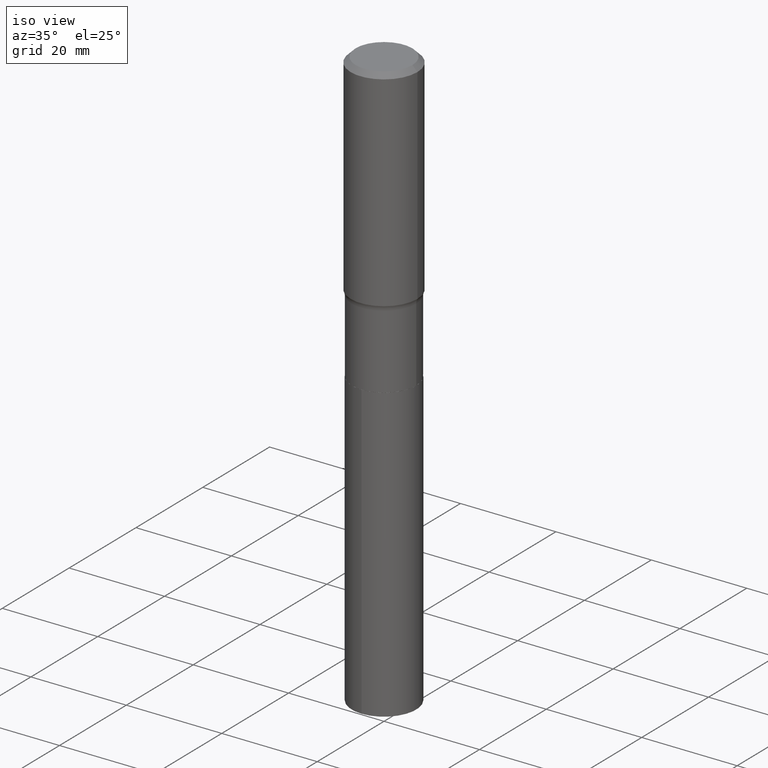
[diagram: clean part render]
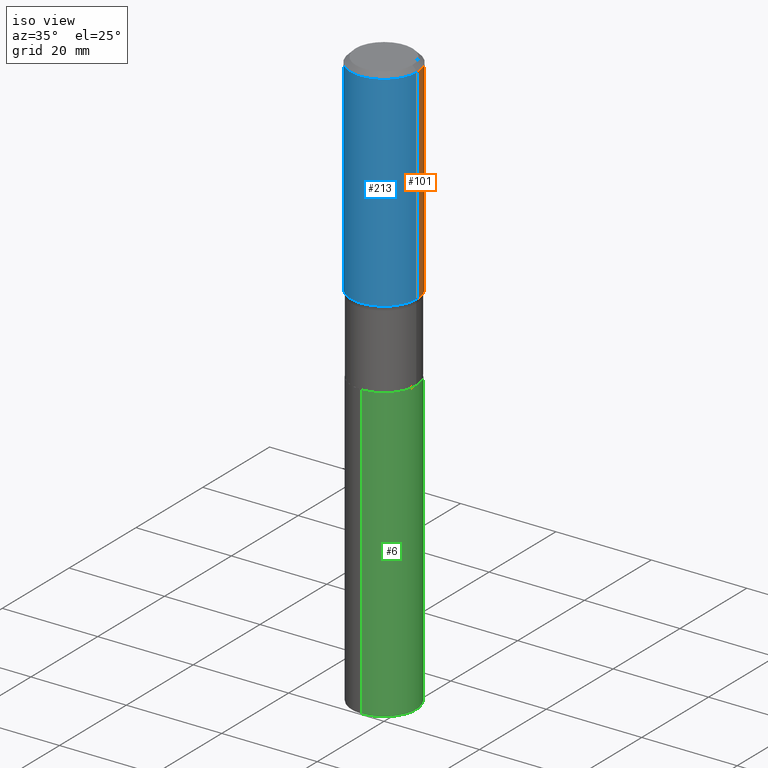
[diagram: same view with three faces highlighted in distinct colors, each labeled with its STEP entity id]
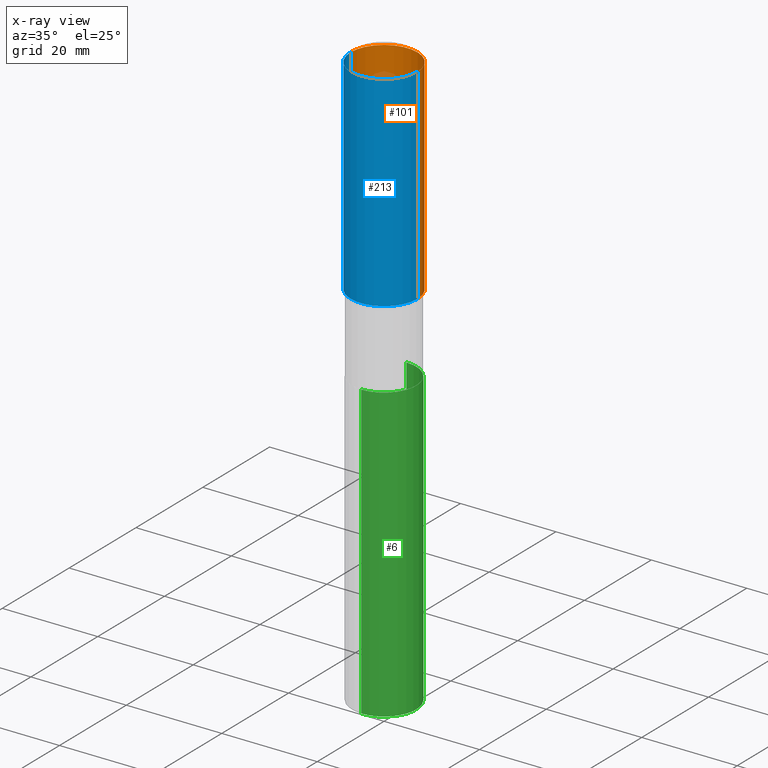
[diagram: x-ray of the same camera — body ghosted, the three highlighted faces saturated]
A machine part, iso view with three faces highlighted in distinct colors.
The next image is the same camera in x-ray (body ghosted, the three faces saturated) — at least one of them is partly hidden behind the body in this view.
Their STEP definitions:

[orange] entity #101 — the highlighted cylindrical surface (partial cylindrical patch) has radius 7.0002 mm, axis along (-0, 0, 1).
#40 = EDGE_CURVE ( 'NONE', #299, #363, #304, .T. ) ;
#57 = AXIS2_PLACEMENT_3D ( 'NONE', #392, #463, #389 ) ;
#58 = EDGE_CURVE ( 'NONE', #180, #459, #484, .T. ) ;
#87 = LINE ( 'NONE', #428, #364 ) ;
#94 = CYLINDRICAL_SURFACE ( 'NONE', #57, 0.2756000000000001227 ) ;
#101 = ADVANCED_FACE ( 'NONE', ( #285 ), #94, .T. ) ;
#180 = VERTEX_POINT ( 'NONE', #211 ) ;
#185 = EDGE_LOOP ( 'NONE', ( #402, #294, #265, #195 ) ) ;
#195 = ORIENTED_EDGE ( 'NONE', *, *, #313, .F. ) ;
#199 = AXIS2_PLACEMENT_3D ( 'NONE', #309, #234, #415 ) ;
#211 = CARTESIAN_POINT ( 'NONE',  ( 0.2756000000000002337, -7.974397557640464982E-15, -1.732758235412673598 ) ) ;
#224 = LINE ( 'NONE', #255, #346 ) ;
#234 = DIRECTION ( 'NONE',  ( -2.445468806185136597E-29, 3.491481338843145583E-15, 1.000000000000000000 ) ) ;
#237 = DIRECTION ( 'NONE',  ( -2.445468806185136877E-29, 3.491481338843145188E-15, 1.000000000000000000 ) ) ;
#255 = CARTESIAN_POINT ( 'NONE',  ( 0.2756000000000001227, -1.924504513970336137E-15, 1.343874319409360548E-29 ) ) ;
#265 = ORIENTED_EDGE ( 'NONE', *, *, #40, .F. ) ;
#269 = DIRECTION ( 'NONE',  ( -2.445468806185136597E-29, 3.491481338843145583E-15, 1.000000000000000000 ) ) ;
#273 = CARTESIAN_POINT ( 'NONE',  ( -0.2756000000000002337, -4.091637263915290283E-15, -1.732758235412673598 ) ) ;
#285 = FACE_OUTER_BOUND ( 'NONE', #185, .T. ) ;
#294 = ORIENTED_EDGE ( 'NONE', *, *, #490, .T. ) ;
#299 = VERTEX_POINT ( 'NONE', #478 ) ;
#304 = CIRCLE ( 'NONE', #416, 0.2756000000000000116 ) ;
#306 = CARTESIAN_POINT ( 'NONE',  ( 1.010956804476942048E-30, -1.443378385477765563E-16, -0.04134000000000026542 ) ) ;
#309 = CARTESIAN_POINT ( 'NONE',  ( 4.237406213362094695E-29, -6.049893043670127661E-15, -1.732758235412673598 ) ) ;
#313 = EDGE_CURVE ( 'NONE', #180, #299, #224, .T. ) ;
#334 = CARTESIAN_POINT ( 'NONE',  ( -0.2756000000000000116, -1.138859661354115236E-15, -0.04134000000000026542 ) ) ;
#336 = DIRECTION ( 'NONE',  ( -2.445468806185136877E-29, 3.491481338843145188E-15, 1.000000000000000000 ) ) ;
#341 = DIRECTION ( 'NONE',  ( 1.000000000000000000, -6.982962677686267499E-15, 0.000000000000000000 ) ) ;
#346 = VECTOR ( 'NONE', #336, 39.37007874015748143 ) ;
#363 = VERTEX_POINT ( 'NONE', #334 ) ;
#364 = VECTOR ( 'NONE', #237, 39.37007874015748143 ) ;
#389 = DIRECTION ( 'NONE',  ( 1.000000000000000000, -6.982962677686267499E-15, 4.876176775795935793E-29 ) ) ;
#392 = CARTESIAN_POINT ( 'NONE',  ( 0.000000000000000000, 0.000000000000000000, 0.000000000000000000 ) ) ;
#402 = ORIENTED_EDGE ( 'NONE', *, *, #58, .T. ) ;
#415 = DIRECTION ( 'NONE',  ( 1.000000000000000000, -6.982962677686267499E-15, 0.000000000000000000 ) ) ;
#416 = AXIS2_PLACEMENT_3D ( 'NONE', #306, #269, #341 ) ;
#428 = CARTESIAN_POINT ( 'NONE',  ( -0.2756000000000001227, 1.958255779754836984E-15, -1.355658510874252567E-29 ) ) ;
#459 = VERTEX_POINT ( 'NONE', #273 ) ;
#463 = DIRECTION ( 'NONE',  ( -2.445468806185136597E-29, 3.491481338843145583E-15, 1.000000000000000000 ) ) ;
#478 = CARTESIAN_POINT ( 'NONE',  ( 0.2756000000000000116, -2.068842352518111732E-15, -0.04134000000000026542 ) ) ;
#484 = CIRCLE ( 'NONE', #199, 0.2756000000000002337 ) ;
#490 = EDGE_CURVE ( 'NONE', #459, #363, #87, .T. ) ;

[blue] entity #213 — the highlighted cylindrical surface (partial cylindrical patch) has radius 7.0002 mm, axis along (-0, 0, 1).
#13 = CYLINDRICAL_SURFACE ( 'NONE', #39, 0.2756000000000001227 ) ;
#16 = CARTESIAN_POINT ( 'NONE',  ( 1.010956804476942048E-30, -1.443378385477765563E-16, -0.04134000000000026542 ) ) ;
#25 = ORIENTED_EDGE ( 'NONE', *, *, #490, .F. ) ;
#39 = AXIS2_PLACEMENT_3D ( 'NONE', #282, #200, #433 ) ;
#59 = AXIS2_PLACEMENT_3D ( 'NONE', #16, #205, #122 ) ;
#87 = LINE ( 'NONE', #428, #364 ) ;
#122 = DIRECTION ( 'NONE',  ( 1.000000000000000000, -6.982962677686267499E-15, 0.000000000000000000 ) ) ;
#167 = DIRECTION ( 'NONE',  ( -2.445468806185136597E-29, 3.491481338843145583E-15, 1.000000000000000000 ) ) ;
#180 = VERTEX_POINT ( 'NONE', #211 ) ;
#190 = EDGE_CURVE ( 'NONE', #363, #299, #477, .T. ) ;
#197 = EDGE_CURVE ( 'NONE', #459, #180, #422, .T. ) ;
#200 = DIRECTION ( 'NONE',  ( -2.445468806185136597E-29, 3.491481338843145583E-15, 1.000000000000000000 ) ) ;
#205 = DIRECTION ( 'NONE',  ( -2.445468806185136597E-29, 3.491481338843145583E-15, 1.000000000000000000 ) ) ;
#211 = CARTESIAN_POINT ( 'NONE',  ( 0.2756000000000002337, -7.974397557640464982E-15, -1.732758235412673598 ) ) ;
#213 = ADVANCED_FACE ( 'NONE', ( #425 ), #13, .T. ) ;
#224 = LINE ( 'NONE', #255, #346 ) ;
#237 = DIRECTION ( 'NONE',  ( -2.445468806185136877E-29, 3.491481338843145188E-15, 1.000000000000000000 ) ) ;
#255 = CARTESIAN_POINT ( 'NONE',  ( 0.2756000000000001227, -1.924504513970336137E-15, 1.343874319409360548E-29 ) ) ;
#273 = CARTESIAN_POINT ( 'NONE',  ( -0.2756000000000002337, -4.091637263915290283E-15, -1.732758235412673598 ) ) ;
#276 = CARTESIAN_POINT ( 'NONE',  ( 4.237406213362094695E-29, -6.049893043670127661E-15, -1.732758235412673598 ) ) ;
#282 = CARTESIAN_POINT ( 'NONE',  ( 0.000000000000000000, 0.000000000000000000, 0.000000000000000000 ) ) ;
#299 = VERTEX_POINT ( 'NONE', #478 ) ;
#311 = AXIS2_PLACEMENT_3D ( 'NONE', #276, #167, #349 ) ;
#313 = EDGE_CURVE ( 'NONE', #180, #299, #224, .T. ) ;
#334 = CARTESIAN_POINT ( 'NONE',  ( -0.2756000000000000116, -1.138859661354115236E-15, -0.04134000000000026542 ) ) ;
#336 = DIRECTION ( 'NONE',  ( -2.445468806185136877E-29, 3.491481338843145188E-15, 1.000000000000000000 ) ) ;
#346 = VECTOR ( 'NONE', #336, 39.37007874015748143 ) ;
#349 = DIRECTION ( 'NONE',  ( 1.000000000000000000, -6.982962677686267499E-15, 0.000000000000000000 ) ) ;
#361 = ORIENTED_EDGE ( 'NONE', *, *, #313, .T. ) ;
#363 = VERTEX_POINT ( 'NONE', #334 ) ;
#364 = VECTOR ( 'NONE', #237, 39.37007874015748143 ) ;
#366 = EDGE_LOOP ( 'NONE', ( #25, #409, #361, #450 ) ) ;
#409 = ORIENTED_EDGE ( 'NONE', *, *, #197, .T. ) ;
#422 = CIRCLE ( 'NONE', #311, 0.2756000000000002337 ) ;
#425 = FACE_OUTER_BOUND ( 'NONE', #366, .T. ) ;
#428 = CARTESIAN_POINT ( 'NONE',  ( -0.2756000000000001227, 1.958255779754836984E-15, -1.355658510874252567E-29 ) ) ;
#433 = DIRECTION ( 'NONE',  ( 1.000000000000000000, -6.982962677686267499E-15, 4.876176775795935793E-29 ) ) ;
#450 = ORIENTED_EDGE ( 'NONE', *, *, #190, .F. ) ;
#459 = VERTEX_POINT ( 'NONE', #273 ) ;
#477 = CIRCLE ( 'NONE', #59, 0.2756000000000000116 ) ;
#478 = CARTESIAN_POINT ( 'NONE',  ( 0.2756000000000000116, -2.068842352518111732E-15, -0.04134000000000026542 ) ) ;
#490 = EDGE_CURVE ( 'NONE', #459, #363, #87, .T. ) ;

[green] entity #6 — the highlighted cylindrical surface (partial cylindrical patch) has radius 6.75 mm, axis along (-0, 0, 1).
#6 = ADVANCED_FACE ( 'NONE', ( #120 ), #345, .T. ) ;
#33 = VERTEX_POINT ( 'NONE', #41 ) ;
#35 = DIRECTION ( 'NONE',  ( -2.445243349671607734E-29, 3.491804205402706878E-15, 1.000000000000000000 ) ) ;
#37 = DIRECTION ( 'NONE',  ( -6.982962677686266711E-15, -1.000000000000000000, 3.083930002255048040E-15 ) ) ;
#41 = CARTESIAN_POINT ( 'NONE',  ( -1.855722331595008201E-15, -0.2657500000000168061, -4.798109346855409463 ) ) ;
#47 = DIRECTION ( 'NONE',  ( -2.445243349671607734E-29, 3.491804205402707273E-15, 1.000000000000000000 ) ) ;
#60 = LINE ( 'NONE', #318, #193 ) ;
#74 = VERTEX_POINT ( 'NONE', #163 ) ;
#75 = CARTESIAN_POINT ( 'NONE',  ( 5.824862149452375369E-29, -8.316359400990487656E-15, -2.381899999999999462 ) ) ;
#79 = VERTEX_POINT ( 'NONE', #430 ) ;
#98 = CIRCLE ( 'NONE', #250, 0.2657499999999999862 ) ;
#106 = ORIENTED_EDGE ( 'NONE', *, *, #160, .F. ) ;
#119 = ORIENTED_EDGE ( 'NONE', *, *, #395, .T. ) ;
#120 = FACE_OUTER_BOUND ( 'NONE', #228, .T. ) ;
#124 = EDGE_CURVE ( 'NONE', #33, #421, #98, .T. ) ;
#126 = CARTESIAN_POINT ( 'NONE',  ( 1.173308198626494863E-28, -1.675328935947353853E-14, -4.798109346855410351 ) ) ;
#138 = LINE ( 'NONE', #287, #280 ) ;
#157 = DIRECTION ( 'NONE',  ( -2.445243349671607734E-29, 3.491804205402706878E-15, 1.000000000000000000 ) ) ;
#160 = EDGE_CURVE ( 'NONE', #33, #79, #60, .T. ) ;
#163 = CARTESIAN_POINT ( 'NONE',  ( 1.888267320282583686E-15, 0.2657499999999916596, -2.381900000000000350 ) ) ;
#186 = AXIS2_PLACEMENT_3D ( 'NONE', #312, #157, #37 ) ;
#193 = VECTOR ( 'NONE', #47, 39.37007874015748143 ) ;
#201 = AXIS2_PLACEMENT_3D ( 'NONE', #75, #35, #451 ) ;
#223 = ORIENTED_EDGE ( 'NONE', *, *, #124, .T. ) ;
#228 = EDGE_LOOP ( 'NONE', ( #223, #119, #487, #106 ) ) ;
#250 = AXIS2_PLACEMENT_3D ( 'NONE', #126, #348, #469 ) ;
#262 = CARTESIAN_POINT ( 'NONE',  ( 1.888267320282583686E-15, 0.2657499999999832774, -4.798109346855411239 ) ) ;
#280 = VECTOR ( 'NONE', #483, 39.37007874015748143 ) ;
#287 = CARTESIAN_POINT ( 'NONE',  ( 1.888267320282524127E-15, 0.2657499999999916596, -2.381900000000000350 ) ) ;
#312 = CARTESIAN_POINT ( 'NONE',  ( 5.824862149452375369E-29, -8.316359400990487656E-15, -2.381899999999999462 ) ) ;
#318 = CARTESIAN_POINT ( 'NONE',  ( -1.855722331595066971E-15, -0.2657500000000083129, -2.381899999999998574 ) ) ;
#345 = CYLINDRICAL_SURFACE ( 'NONE', #186, 0.2657499999999999862 ) ;
#348 = DIRECTION ( 'NONE',  ( -2.445243349671607734E-29, 3.491804205402706878E-15, 1.000000000000000000 ) ) ;
#395 = EDGE_CURVE ( 'NONE', #421, #74, #138, .T. ) ;
#417 = CIRCLE ( 'NONE', #201, 0.2657499999999999862 ) ;
#421 = VERTEX_POINT ( 'NONE', #262 ) ;
#424 = EDGE_CURVE ( 'NONE', #79, #74, #417, .T. ) ;
#430 = CARTESIAN_POINT ( 'NONE',  ( -1.855722331595066971E-15, -0.2657500000000083129, -2.381899999999998574 ) ) ;
#451 = DIRECTION ( 'NONE',  ( -6.982962677686266711E-15, -1.000000000000000000, 3.083930002255048040E-15 ) ) ;
#469 = DIRECTION ( 'NONE',  ( -6.982962677686266711E-15, -1.000000000000000000, 4.111906669673397387E-15 ) ) ;
#483 = DIRECTION ( 'NONE',  ( -2.445243349671607734E-29, 3.491804205402707273E-15, 1.000000000000000000 ) ) ;
#487 = ORIENTED_EDGE ( 'NONE', *, *, #424, .F. ) ;